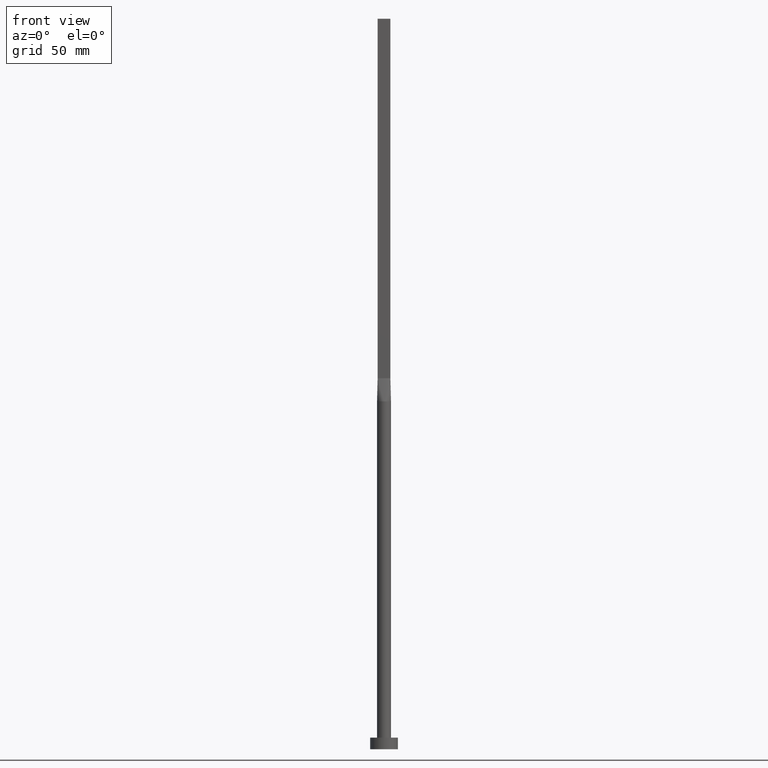
[diagram: clean part render]
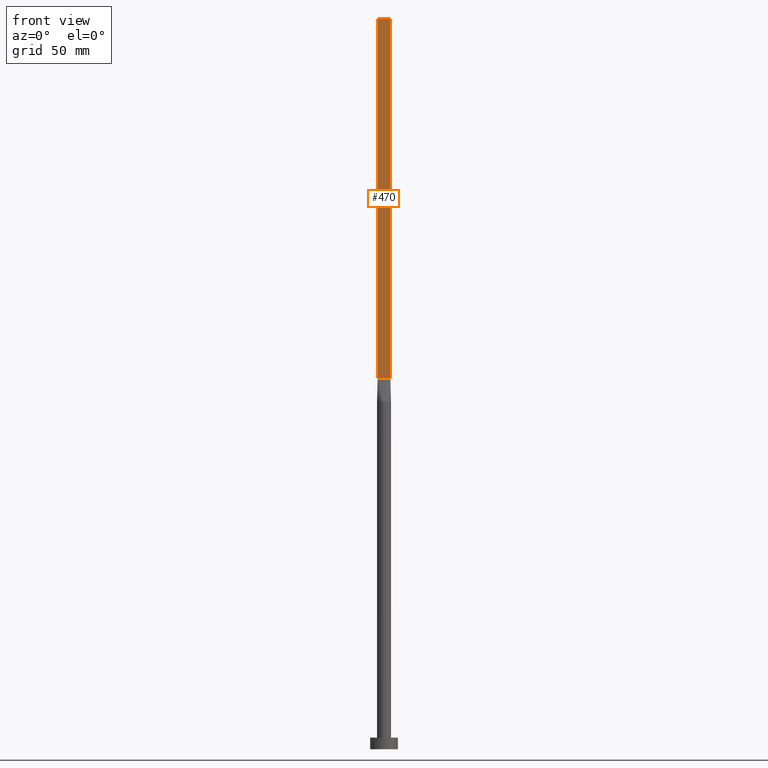
[diagram: same view with one face highlighted and labeled with its STEP entity id]
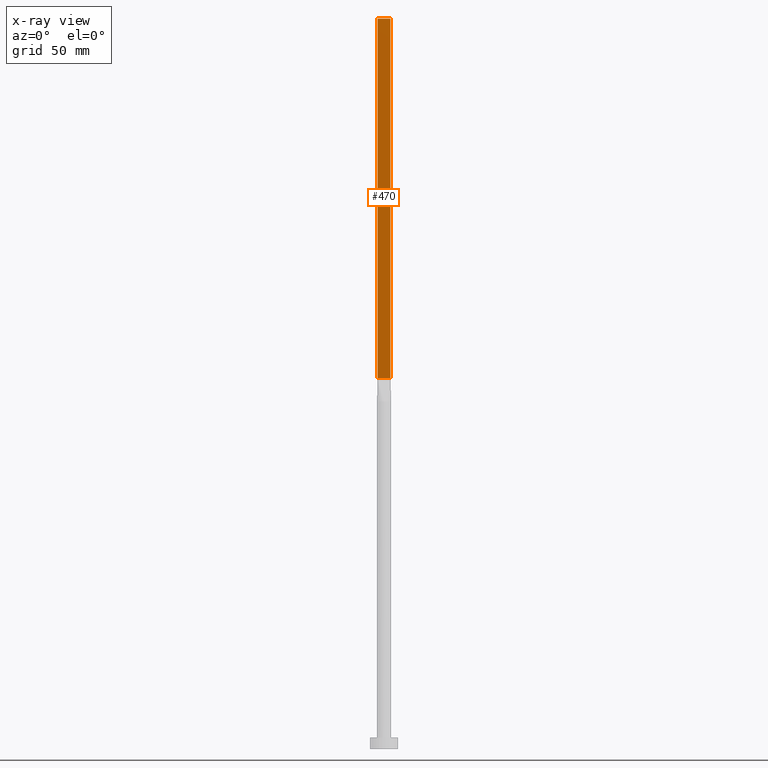
[diagram: x-ray of the same camera — body ghosted, the highlighted face saturated]
A machine part, front view. The second image highlights one B-rep face of the part: STEP entity #470.
The next image is the same camera in x-ray: the body ghosted, the highlighted face saturated — about 0% of this face is hidden behind the body in this view.
In plain terms, the highlighted planar face has unit normal (0, 1, -0).
Its self-contained STEP definition (entity closure, byte-faithful):
#17 = DIRECTION ( 'NONE',  ( -0.000000000000000000, -0.000000000000000000, -1.000000000000000000 ) ) ;
#49 = CARTESIAN_POINT ( 'NONE',  ( 2.750000000000000000, -0.9999999999999997780, 315.0000000000000000 ) ) ;
#71 = LINE ( 'NONE', #290, #456 ) ;
#86 = DIRECTION ( 'NONE',  ( -1.000000000000000000, 7.885106708985489034E-17, 0.000000000000000000 ) ) ;
#107 = CARTESIAN_POINT ( 'NONE',  ( -2.750000000000000000, -0.9999999999999993339, 315.0000000000000000 ) ) ;
#138 = ORIENTED_EDGE ( 'NONE', *, *, #416, .T. ) ;
#142 = VECTOR ( 'NONE', #325, 1000.000000000000000 ) ;
#143 = LINE ( 'NONE', #147, #142 ) ;
#147 = CARTESIAN_POINT ( 'NONE',  ( -2.750000000000000000, -0.9999999999999993339, 160.0000000000000000 ) ) ;
#150 = VECTOR ( 'NONE', #221, 1000.000000000000000 ) ;
#154 = CARTESIAN_POINT ( 'NONE',  ( 2.750000000000000000, -0.9999999999999997780, 160.0000000000000000 ) ) ;
#158 = VERTEX_POINT ( 'NONE', #580 ) ;
#162 = EDGE_LOOP ( 'NONE', ( #181, #517, #299, #138 ) ) ;
#178 = EDGE_CURVE ( 'NONE', #158, #312, #539, .T. ) ;
#181 = ORIENTED_EDGE ( 'NONE', *, *, #286, .T. ) ;
#221 = DIRECTION ( 'NONE',  ( -0.000000000000000000, -0.000000000000000000, -1.000000000000000000 ) ) ;
#222 = PLANE ( 'NONE',  #310 ) ;
#251 = CARTESIAN_POINT ( 'NONE',  ( -2.750000000000000000, -0.9999999999999993339, 315.0000000000000000 ) ) ;
#286 = EDGE_CURVE ( 'NONE', #522, #312, #143, .T. ) ;
#290 = CARTESIAN_POINT ( 'NONE',  ( -2.750000000000000000, -0.9999999999999993339, 315.0000000000000000 ) ) ;
#299 = ORIENTED_EDGE ( 'NONE', *, *, #366, .F. ) ;
#304 = DIRECTION ( 'NONE',  ( 7.885106708985489034E-17, 1.000000000000000000, -0.000000000000000000 ) ) ;
#310 = AXIS2_PLACEMENT_3D ( 'NONE', #483, #304, #86 ) ;
#312 = VERTEX_POINT ( 'NONE', #154 ) ;
#325 = DIRECTION ( 'NONE',  ( 1.000000000000000000, -7.885106708985487801E-17, 0.000000000000000000 ) ) ;
#351 = VERTEX_POINT ( 'NONE', #107 ) ;
#366 = EDGE_CURVE ( 'NONE', #351, #158, #71, .T. ) ;
#378 = CARTESIAN_POINT ( 'NONE',  ( -2.750000000000000000, -0.9999999999999993339, 160.0000000000000000 ) ) ;
#394 = LINE ( 'NONE', #251, #528 ) ;
#416 = EDGE_CURVE ( 'NONE', #351, #522, #394, .T. ) ;
#456 = VECTOR ( 'NONE', #472, 1000.000000000000000 ) ;
#470 = ADVANCED_FACE ( 'NONE', ( #525 ), #222, .F. ) ;
#472 = DIRECTION ( 'NONE',  ( 1.000000000000000000, -7.885106708985487801E-17, 0.000000000000000000 ) ) ;
#483 = CARTESIAN_POINT ( 'NONE',  ( -2.750000000000000000, -0.9999999999999993339, 315.0000000000000000 ) ) ;
#517 = ORIENTED_EDGE ( 'NONE', *, *, #178, .F. ) ;
#522 = VERTEX_POINT ( 'NONE', #378 ) ;
#525 = FACE_OUTER_BOUND ( 'NONE', #162, .T. ) ;
#528 = VECTOR ( 'NONE', #17, 1000.000000000000000 ) ;
#539 = LINE ( 'NONE', #49, #150 ) ;
#580 = CARTESIAN_POINT ( 'NONE',  ( 2.750000000000000000, -0.9999999999999997780, 315.0000000000000000 ) ) ;